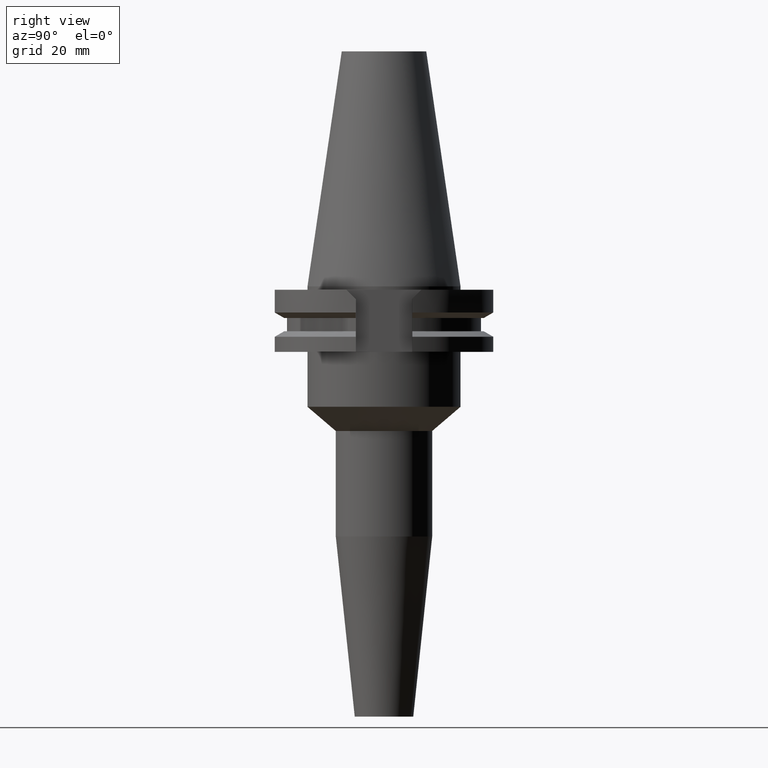
[diagram: clean part render]
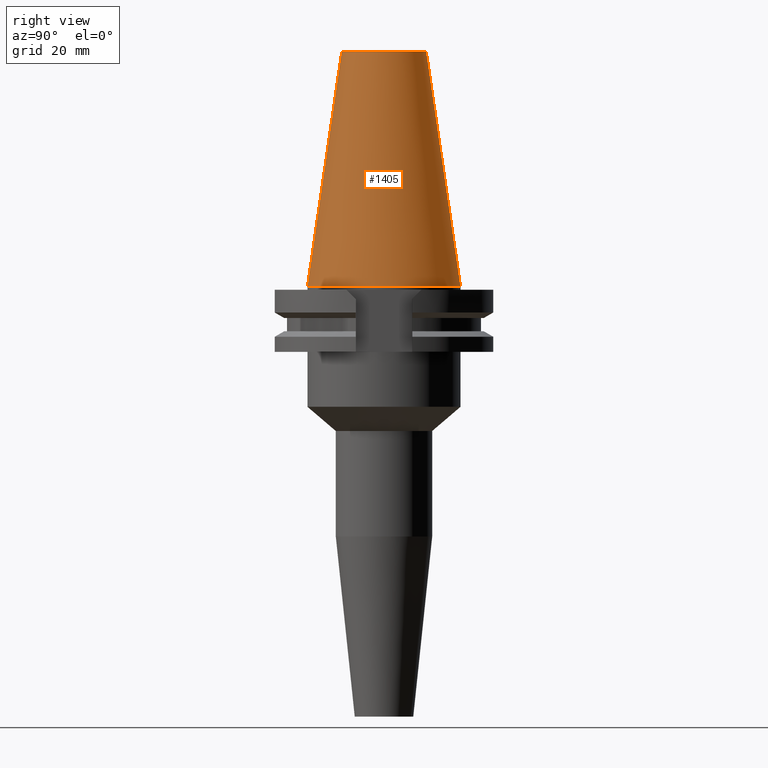
[diagram: same view with one face highlighted and labeled with its STEP entity id]
A machine part, right view. The second image highlights one B-rep face of the part: STEP entity #1405.
In plain terms, the highlighted conical surface has half-angle 8.297 deg.
Its self-contained STEP definition (entity closure, byte-faithful):
#26=CARTESIAN_POINT('',(0.E0,1.642557519356E-14,6.825E1));
#27=DIRECTION('',(0.E0,0.E0,-1.E0));
#28=DIRECTION('',(0.E0,1.E0,0.E0));
#29=AXIS2_PLACEMENT_3D('',#26,#27,#28);
#50=DIRECTION('',(0.E0,-1.443069799457E-1,-9.895329683942E-1));
#51=VECTOR('',#50,6.897193138573E1);
#52=CARTESIAN_POINT('',(0.E0,-1.227186888070E1,6.825E1));
#53=LINE('',#52,#51);
#65=DIRECTION('',(0.E0,1.443069799457E-1,-9.895329683942E-1));
#66=VECTOR('',#65,6.897193138573E1);
#67=CARTESIAN_POINT('',(0.E0,1.227186888070E1,6.825E1));
#68=LINE('',#67,#66);
#72=CARTESIAN_POINT('',(0.E0,1.642557519356E-14,-3.126388037344E-13));
#73=DIRECTION('',(0.E0,0.E0,-1.E0));
#74=DIRECTION('',(0.E0,1.E0,0.E0));
#75=AXIS2_PLACEMENT_3D('',#72,#73,#74);
#1166=CARTESIAN_POINT('',(0.E0,-1.227186888070E1,6.825E1));
#1167=CARTESIAN_POINT('',(0.E0,1.227186888070E1,6.825E1));
#1168=VERTEX_POINT('',#1166);
#1169=VERTEX_POINT('',#1167);
#1352=CARTESIAN_POINT('',(0.E0,2.2225E1,-1.918465386552E-13));
#1353=VERTEX_POINT('',#1352);
#1354=CARTESIAN_POINT('',(0.E0,-2.2225E1,-1.918465386552E-13));
#1355=VERTEX_POINT('',#1354);
#1393=CARTESIAN_POINT('',(0.E0,1.642557519356E-14,3.4125E1));
#1394=DIRECTION('',(0.E0,0.E0,-1.E0));
#1395=DIRECTION('',(0.E0,-1.E0,0.E0));
#1396=AXIS2_PLACEMENT_3D('',#1393,#1394,#1395);
#1397=CONICAL_SURFACE('',#1396,1.724843444035E1,8.29715E0);
#1398=ORIENTED_EDGE('',*,*,#1383,.T.);
#1400=ORIENTED_EDGE('',*,*,#1399,.T.);
#1401=ORIENTED_EDGE('',*,*,#1386,.F.);
#1402=ORIENTED_EDGE('',*,*,#1367,.F.);
#1403=EDGE_LOOP('',(#1398,#1400,#1401,#1402));
#1404=FACE_OUTER_BOUND('',#1403,.F.);
#30=CIRCLE('',#29,1.227186888070E1);
#76=CIRCLE('',#75,2.2225E1);
#1367=EDGE_CURVE('',#1169,#1168,#30,.T.);
#1383=EDGE_CURVE('',#1169,#1353,#68,.T.);
#1386=EDGE_CURVE('',#1168,#1355,#53,.T.);
#1399=EDGE_CURVE('',#1353,#1355,#76,.T.);
#1405=ADVANCED_FACE('',(#1404),#1397,.T.);